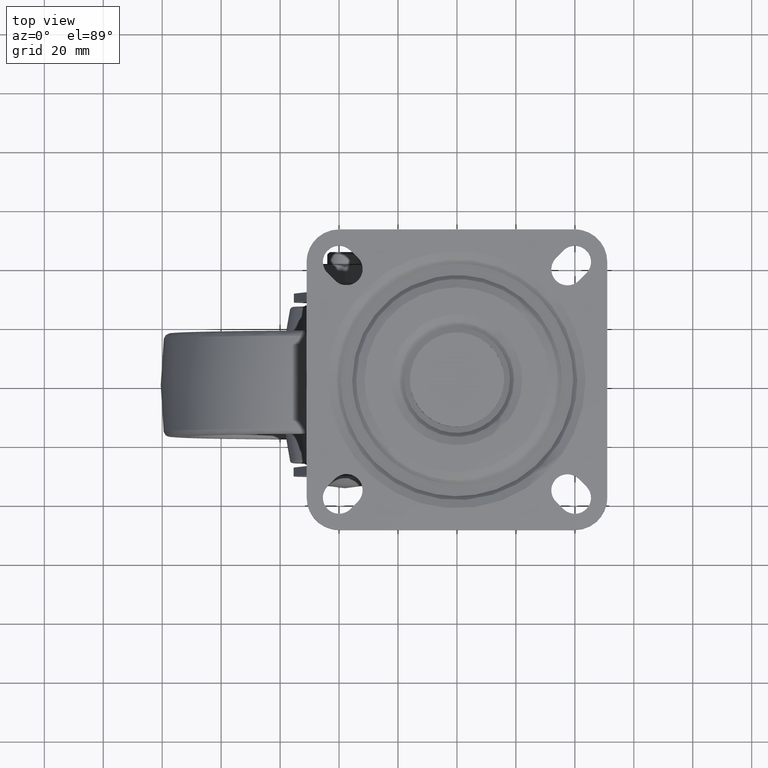
[diagram: clean part render]
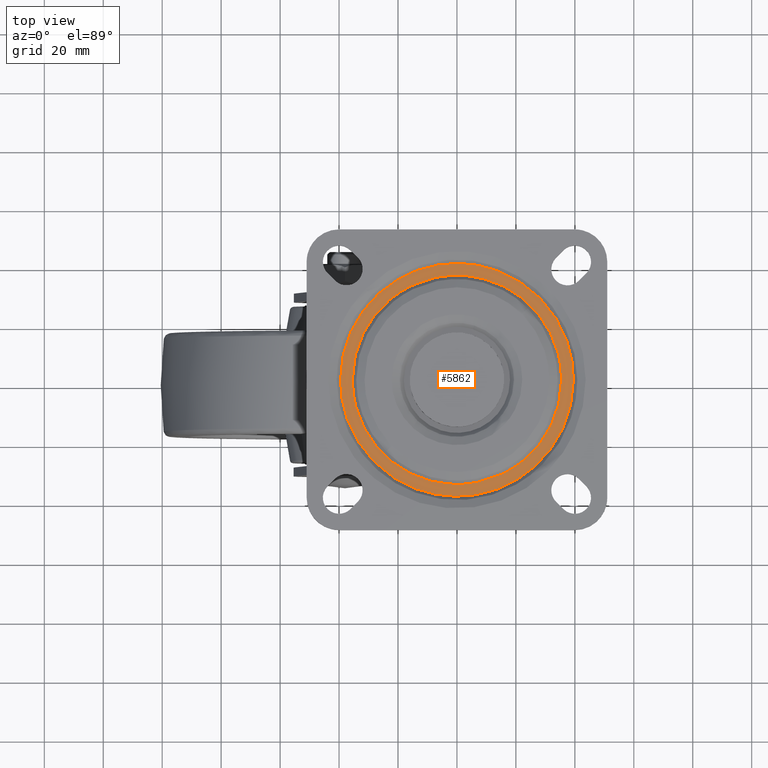
[diagram: same view with one face highlighted and labeled with its STEP entity id]
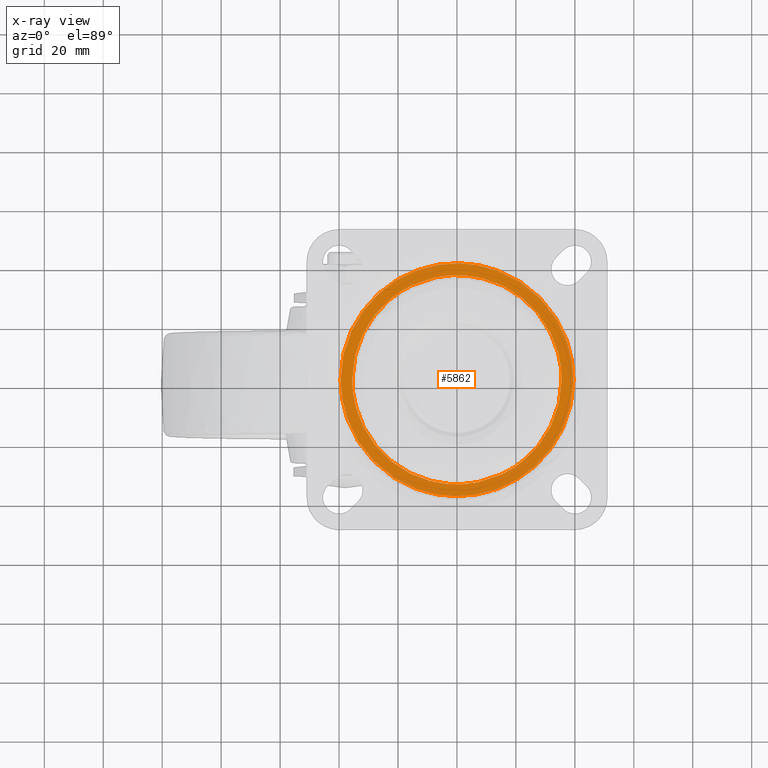
[diagram: x-ray of the same camera — body ghosted, the highlighted face saturated]
A machine part, top view. The second image highlights one B-rep face of the part: STEP entity #5862.
The next image is the same camera in x-ray: the body ghosted, the highlighted face saturated — about 0% of this face is hidden behind the body in this view.
In plain terms, the highlighted face is a freeform B-spline surface patch.
Its self-contained STEP definition (entity closure, byte-faithful):
#5682=CARTESIAN_POINT('',(15.283143936864560,-32.041777594354862,-2.500000000014388));
#5683=VERTEX_POINT('',#5682);
#5689=CARTESIAN_POINT('',(35.500000000000000,0.0,-2.500000000000000));
#5690=VERTEX_POINT('',#5689);
#5691=CARTESIAN_POINT('',(35.500000000000000,0.0,-2.500000000000000));
#5692=CARTESIAN_POINT('',(35.500000000003098,-22.398831904022433,-2.500000000007194));
#5693=CARTESIAN_POINT('',(15.283143936864560,-32.041777594354855,-2.500000000014389));
#5701=(BOUNDED_CURVE()B_SPLINE_CURVE(2,(#5691,#5692,#5693),.UNSPECIFIED.,.F.,.U.)B_SPLINE_CURVE_WITH_KNOTS((3,3),(0.500000000000000,0.676854720136106),.UNSPECIFIED.)CURVE()GEOMETRIC_REPRESENTATION_ITEM()RATIONAL_B_SPLINE_CURVE((1.0,0.792801807027934,0.878755441502122))REPRESENTATION_ITEM(''));
#5702=EDGE_CURVE('',#5690,#5683,#5701,.T.);
#5704=CARTESIAN_POINT('',(-15.283143936864571,32.041777594354862,-2.500000000014388));
#5705=VERTEX_POINT('',#5704);
#5706=CARTESIAN_POINT('',(-15.283143936864574,32.041777594354848,-2.500000000014388));
#5707=CARTESIAN_POINT('',(-8.032829888153723,35.500000000012051,-2.500000000013360));
#5708=CARTESIAN_POINT('',(-5.046843E-012,35.500000000010587,-2.500000000011732));
#5709=CARTESIAN_POINT('',(35.499999999998046,35.500000000004086,-2.500000000004539));
#5710=CARTESIAN_POINT('',(35.500000000000000,0.0,-2.500000000000000));
#5718=(BOUNDED_CURVE()B_SPLINE_CURVE(2,(#5706,#5707,#5708,#5709,#5710),.UNSPECIFIED.,.F.,.U.)B_SPLINE_CURVE_WITH_KNOTS((3,2,3),(0.176854720136106,0.250000000000000,0.500000000000000),.UNSPECIFIED.)CURVE()GEOMETRIC_REPRESENTATION_ITEM()RATIONAL_B_SPLINE_CURVE((0.878755441502121,0.914304974158614,1.0,0.707106781186548,1.0))REPRESENTATION_ITEM(''));
#5719=EDGE_CURVE('',#5705,#5690,#5718,.T.);
#5749=CARTESIAN_POINT('',(-35.500000000000000,0.0,-2.500000000000000));
#5750=VERTEX_POINT('',#5749);
#5751=CARTESIAN_POINT('',(-35.500000000000000,0.0,-2.500000000000000));
#5752=CARTESIAN_POINT('',(-35.500000000003091,22.398831904022416,-2.500000000007193));
#5753=CARTESIAN_POINT('',(-15.283143936864574,32.041777594354848,-2.500000000014388));
#5761=(BOUNDED_CURVE()B_SPLINE_CURVE(2,(#5751,#5752,#5753),.UNSPECIFIED.,.F.,.U.)B_SPLINE_CURVE_WITH_KNOTS((3,3),(0.0,0.176854720136106),.UNSPECIFIED.)CURVE()GEOMETRIC_REPRESENTATION_ITEM()RATIONAL_B_SPLINE_CURVE((1.0,0.792801807027934,0.878755441502121))REPRESENTATION_ITEM(''));
#5762=EDGE_CURVE('',#5750,#5705,#5761,.T.);
#5764=CARTESIAN_POINT('',(15.283143936864560,-32.041777594354855,-2.500000000014389));
#5765=CARTESIAN_POINT('',(8.032829888153719,-35.500000000012051,-2.500000000013361));
#5766=CARTESIAN_POINT('',(5.052638E-012,-35.500000000010580,-2.500000000011733));
#5767=CARTESIAN_POINT('',(-35.499999999998046,-35.500000000004086,-2.500000000004540));
#5768=CARTESIAN_POINT('',(-35.500000000000000,0.0,-2.500000000000000));
#5776=(BOUNDED_CURVE()B_SPLINE_CURVE(2,(#5764,#5765,#5766,#5767,#5768),.UNSPECIFIED.,.F.,.U.)B_SPLINE_CURVE_WITH_KNOTS((3,2,3),(0.676854720136106,0.750000000000000,1.0),.UNSPECIFIED.)CURVE()GEOMETRIC_REPRESENTATION_ITEM()RATIONAL_B_SPLINE_CURVE((0.878755441502122,0.914304974158614,1.0,0.707106781186548,1.0))REPRESENTATION_ITEM(''));
#5777=EDGE_CURVE('',#5683,#5750,#5776,.T.);
#5785=CARTESIAN_POINT('',(43.446049846882673,-43.429116176762513,-2.500000000000000));
#5786=CARTESIAN_POINT('',(-43.446051965827792,-43.429116176762513,-2.500000000000000));
#5787=CARTESIAN_POINT('',(43.446049846882673,43.429116176762520,-2.500000000000000));
#5788=CARTESIAN_POINT('',(-43.446051965827792,43.429116176762520,-2.500000000000000));
#5789=B_SPLINE_SURFACE_WITH_KNOTS('',1,1,((#5785,#5787),(#5786,#5788)),.UNSPECIFIED.,.F.,.F.,.U.,(2,2),(2,2),(0.0,86.892101812710450),(0.0,86.858232353525025),.UNSPECIFIED.);
#5790=CARTESIAN_POINT('',(-13.833191559962920,-36.998551475254160,-2.499999999978963));
#5791=VERTEX_POINT('',#5790);
#5792=CARTESIAN_POINT('',(-39.500000000000000,0.0,-2.500000000000000));
#5793=VERTEX_POINT('',#5792);
#5794=CARTESIAN_POINT('',(-13.833191559962922,-36.998551475254160,-2.499999999978963));
#5795=CARTESIAN_POINT('',(-39.500000000003695,-27.402125028077069,-2.499999999989481));
#5796=CARTESIAN_POINT('',(-39.500000000000000,0.0,-2.500000000000000));
#5804=(BOUNDED_CURVE()B_SPLINE_CURVE(2,(#5794,#5795,#5796),.UNSPECIFIED.,.F.,.U.)B_SPLINE_CURVE_WITH_KNOTS((3,3),(0.809477856573747,1.0),.UNSPECIFIED.)CURVE()GEOMETRIC_REPRESENTATION_ITEM()RATIONAL_B_SPLINE_CURVE((0.893791307297572,0.776789424626586,1.0))REPRESENTATION_ITEM(''));
#5805=EDGE_CURVE('',#5791,#5793,#5804,.T.);
#5806=ORIENTED_EDGE('',*,*,#5805,.F.);
#5807=CARTESIAN_POINT('',(39.500000000000000,0.0,-2.500000000000000));
#5808=VERTEX_POINT('',#5807);
#5809=CARTESIAN_POINT('',(39.500000000000000,0.0,-2.500000000000000));
#5810=CARTESIAN_POINT('',(39.499999999997449,-39.500000000006843,-2.499999999992703));
#5811=CARTESIAN_POINT('',(-6.247481E-012,-39.500000000016684,-2.499999999982184));
#5812=CARTESIAN_POINT('',(-7.142763569786901,-39.500000000018460,-2.499999999980282));
#5813=CARTESIAN_POINT('',(-13.833191559962922,-36.998551475254160,-2.499999999978963));
#5821=(BOUNDED_CURVE()B_SPLINE_CURVE(2,(#5809,#5810,#5811,#5812,#5813),.UNSPECIFIED.,.F.,.U.)B_SPLINE_CURVE_WITH_KNOTS((3,2,3),(0.500000000000000,0.750000000000000,0.809477856573747),.UNSPECIFIED.)CURVE()GEOMETRIC_REPRESENTATION_ITEM()RATIONAL_B_SPLINE_CURVE((1.0,0.707106781186547,1.0,0.930317356559961,0.893791307297572))REPRESENTATION_ITEM(''));
#5822=EDGE_CURVE('',#5808,#5791,#5821,.T.);
#5823=ORIENTED_EDGE('',*,*,#5822,.F.);
#5824=CARTESIAN_POINT('',(13.833191559962909,36.998551475254160,-2.499999999978964));
#5825=VERTEX_POINT('',#5824);
#5826=CARTESIAN_POINT('',(13.833191559962909,36.998551475254160,-2.499999999978964));
#5827=CARTESIAN_POINT('',(39.500000000003688,27.402125028077069,-2.499999999989481));
#5828=CARTESIAN_POINT('',(39.500000000000000,0.0,-2.500000000000000));
#5836=(BOUNDED_CURVE()B_SPLINE_CURVE(2,(#5826,#5827,#5828),.UNSPECIFIED.,.F.,.U.)B_SPLINE_CURVE_WITH_KNOTS((3,3),(0.309477856573747,0.500000000000000),.UNSPECIFIED.)CURVE()GEOMETRIC_REPRESENTATION_ITEM()RATIONAL_B_SPLINE_CURVE((0.893791307297572,0.776789424626586,1.0))REPRESENTATION_ITEM(''));
#5837=EDGE_CURVE('',#5825,#5808,#5836,.T.);
#5838=ORIENTED_EDGE('',*,*,#5837,.F.);
#5839=CARTESIAN_POINT('',(-39.500000000000000,0.0,-2.500000000000000));
#5840=CARTESIAN_POINT('',(-39.499999999997449,39.500000000006843,-2.499999999992703));
#5841=CARTESIAN_POINT('',(6.238455E-012,39.500000000016684,-2.499999999982185));
#5842=CARTESIAN_POINT('',(7.142763569786890,39.500000000018460,-2.499999999980284));
#5843=CARTESIAN_POINT('',(13.833191559962909,36.998551475254160,-2.499999999978964));
#5851=(BOUNDED_CURVE()B_SPLINE_CURVE(2,(#5839,#5840,#5841,#5842,#5843),.UNSPECIFIED.,.F.,.U.)B_SPLINE_CURVE_WITH_KNOTS((3,2,3),(0.0,0.250000000000000,0.309477856573747),.UNSPECIFIED.)CURVE()GEOMETRIC_REPRESENTATION_ITEM()RATIONAL_B_SPLINE_CURVE((1.0,0.707106781186547,1.0,0.930317356559961,0.893791307297572))REPRESENTATION_ITEM(''));
#5852=EDGE_CURVE('',#5793,#5825,#5851,.T.);
#5853=ORIENTED_EDGE('',*,*,#5852,.F.);
#5854=EDGE_LOOP('',(#5806,#5823,#5838,#5853));
#5855=FACE_OUTER_BOUND('',#5854,.T.);
#5856=ORIENTED_EDGE('',*,*,#5702,.T.);
#5857=ORIENTED_EDGE('',*,*,#5777,.T.);
#5858=ORIENTED_EDGE('',*,*,#5762,.T.);
#5859=ORIENTED_EDGE('',*,*,#5719,.T.);
#5860=EDGE_LOOP('',(#5856,#5857,#5858,#5859));
#5861=FACE_BOUND('',#5860,.T.);
#5862=ADVANCED_FACE('',(#5855,#5861),#5789,.F.);